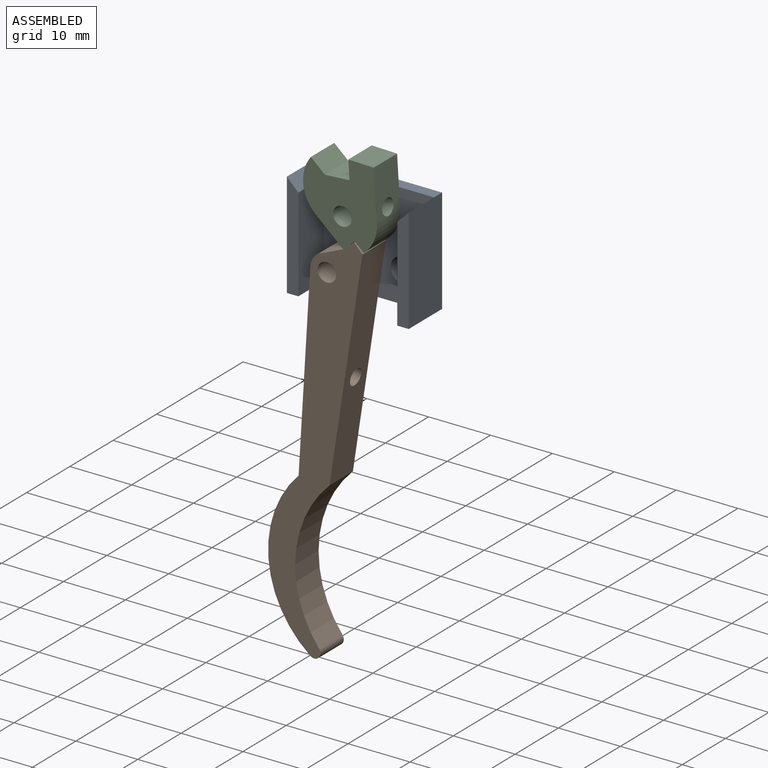
[diagram: assembled view]
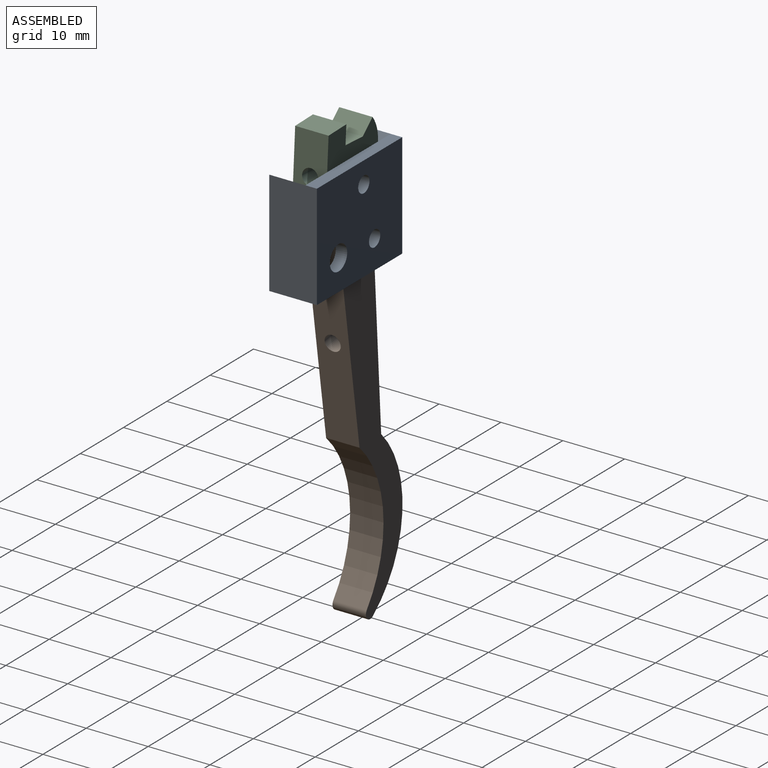
[diagram: assembled view, second angle]
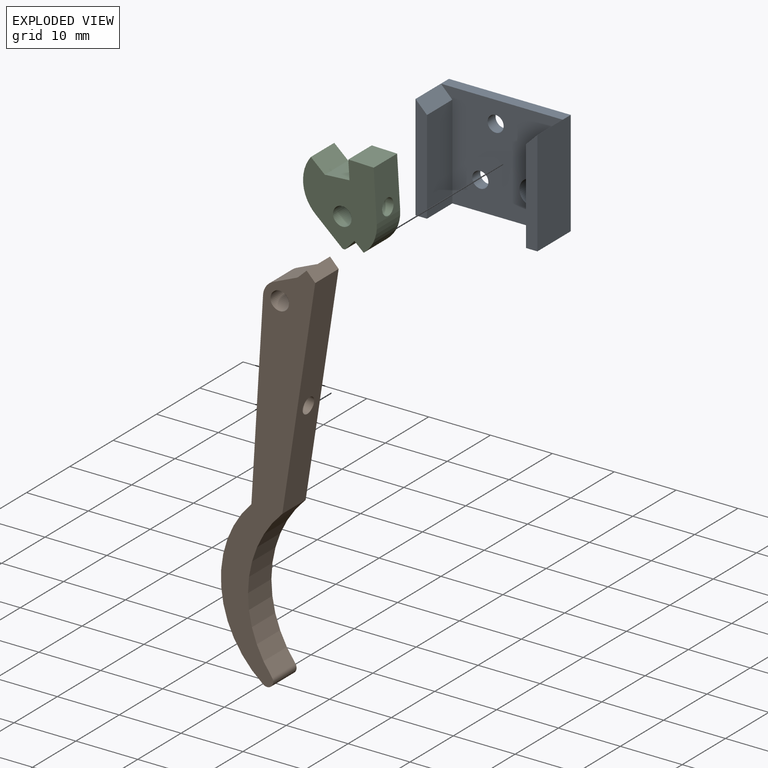
[diagram: exploded view]
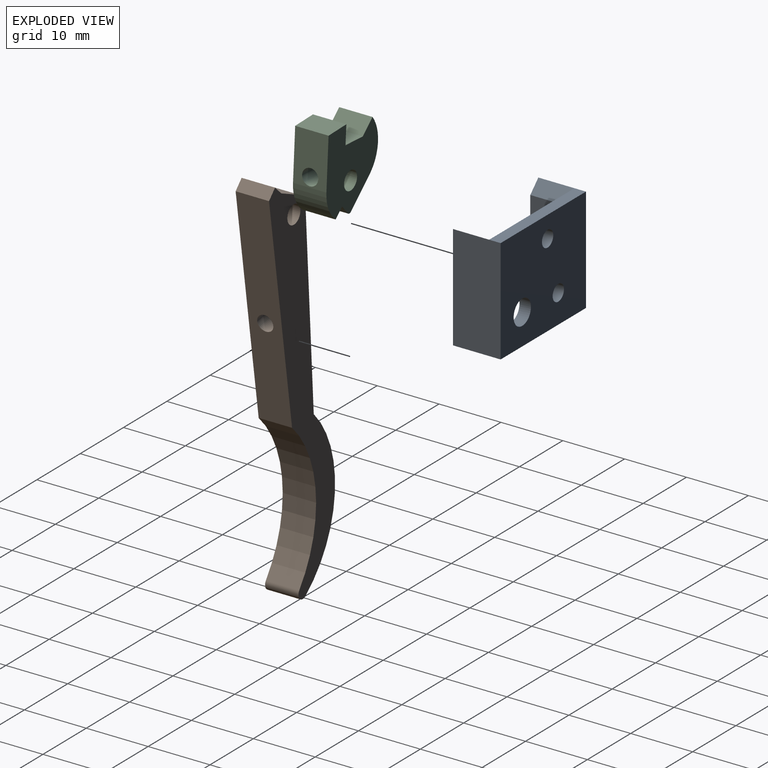
[diagram: exploded view, second angle]
ASSEMBLY  parts=3 mates=2
PART A: 15 faces, bbox 19.7x7.7x17 mm
  f0: plane 15.15x5.85mm, normal (1,0,0), area 88.6mm2, adj f3,f6,f9,f13
  f1: plane 15.15x5.85mm, normal (-1,0,0), area 88.6mm2, adj f2,f6,f9,f14
  f2: plane 5.85x1.85mm, normal (-0.71,0,0.71), area 15.3mm2, adj f1,f4,f6,f14
  f3: plane 5.85x1.85mm, normal (0.71,0,0.71), area 15.3mm2, adj f0,f6,f7,f13
  f4: plane 17x7.7mm, normal (1,0,0), area 130.9mm2, adj f2,f5,f8,f9,f14
  f5: plane 19.7x17mm, normal (0,1,0), area 311.7mm2, adj f4,f7,f8,f9,f10,f11,f12
  f6: plane 19.7x17mm, normal (0,-1,0), area 252.2mm2, adj f0,f1,f2,f3,f8,f9,f10,f11
  f7: plane 17x7.7mm, normal (-1,0,0), area 130.9mm2, adj f3,f5,f8,f9,f13
  f8: plane 19.7x1.85mm, normal (0,0,1), area 36.4mm2, adj f4,f5,f6,f7
  f9: plane 19.7x7.7mm, normal (0,0,-1), area 58.1mm2, adj f0,f1,f4,f5,f6,f7,f13,f14
  f10: cylinder r=2mm len=4mm, axis (0,-1,0), area 23.2mm2, adj f5,f6
  f11: cylinder r=1.3mm len=2.6mm, axis (0,-1,0), area 15.1mm2, adj f5,f6
  f12: cylinder r=1.3mm len=2.6mm, axis (0,-1,0), area 15.1mm2, adj f5,f6
  f13: plane 17x1.85mm, normal (0,-1,0), area 29.7mm2, adj f0,f3,f7,f9
  f14: plane 17x1.85mm, normal (0,-1,0), area 29.7mm2, adj f1,f2,f4,f9
PART B: 14 faces, bbox 14.4x5.4x62.7 mm
  f0: plane 5.4x1.29mm, normal (-0.71,0,0.71), area 9.8mm2, adj f8,f10,f11,f12
  f1: plane 5.4x3.78mm, normal (-0.41,0,0.91), area 22.4mm2, adj f2,f10,f11,f12
  f2: cylinder r=2.7mm len=5.4mm, axis (0,1,0), area 16.1mm2, adj f1,f3,f10,f11
  f3: plane 31.11x5.4mm, normal (-1,0,0.04), area 162.8mm2, adj f2,f4,f10,f11,f13
  f4: cylinder r=17.27mm len=25.81mm, axis (0,1,0), area 158.3mm2, adj f3,f5,f10,f11
  f5: cylinder r=1mm len=5.4mm, axis (0,1,0), area 15.6mm2, adj f4,f6,f10,f11
  f6: cylinder r=18.27mm len=24.37mm, axis (0,1,0), area 144.3mm2, adj f5,f7,f10,f11
  f7: plane 35.24x5.4mm, normal (0.99,0,-0.13), area 186.7mm2, adj f6,f8,f10,f11,f13
  f8: plane 5.4x1.41mm, normal (0.71,0,0.71), area 10.8mm2, adj f0,f7,f10,f11
  f9: cylinder r=1.5mm len=5.4mm, axis (0,1,0), area 50.9mm2, adj f10,f11
  f10: plane 62.66x14.36mm, normal (0,-1,0), area 328.8mm2, adj f0,f1,f2,f3,f4,f5,f6,f7
  f11: plane 62.66x14.36mm, normal (0,1,0), area 328.8mm2, adj f0,f1,f2,f3,f4,f5,f6,f7
  f12: cylinder r=1mm len=5.4mm, axis (0,-1,0), area 1.9mm2, adj f0,f1,f10,f11
  f13: cylinder r=1.3mm len=6.82mm, axis (0.99,0,-0.13), area 52.4mm2, adj f3,f7
PART C: 16 faces, bbox 11.7x5.4x13.2 mm
  f0: plane 5.4x3mm, normal (-1,0,0), area 16.2mm2, adj f1,f8,f10,f11
  f1: plane 5.4x4mm, normal (0,0,1), area 21.6mm2, adj f0,f2,f10,f11
  f2: plane 5.4x2.12mm, normal (0.71,0,0.71), area 16.2mm2, adj f1,f10,f11,f12
  f3: plane 5.4x4.01mm, normal (-0.71,0,-0.71), area 30.6mm2, adj f10,f11,f12,f15
  f4: plane 5.4x1.41mm, normal (0.71,0,-0.71), area 10.8mm2, adj f5,f10,f11,f15
  f5: plane 5.4x1.41mm, normal (-0.71,0,-0.71), area 10.8mm2, adj f4,f6,f10,f11
  f6: cylinder r=5.59mm len=5.4mm, axis (0,1,0), area 29.1mm2, adj f5,f7,f10,f11
  f7: plane 8.14x5.4mm, normal (1,0,0), area 38.7mm2, adj f6,f8,f10,f11,f13
  f8: plane 5.4x4.09mm, normal (0.09,0,1), area 22.2mm2, adj f0,f7,f10,f11
  f9: cylinder r=1.5mm len=5.4mm, axis (0,1,0), area 41.3mm2, adj f10,f11,f13
  f10: plane 13.24x11.71mm, normal (0,-1,0), area 103.6mm2, adj f0,f1,f2,f3,f4,f5,f6,f7
  f11: plane 13.24x11.71mm, normal (0,1,0), area 103.6mm2, adj f0,f1,f2,f3,f4,f5,f6,f7
  f12: cylinder r=6mm len=8.21mm, axis (0,1,0), area 48.8mm2, adj f2,f3,f10,f11
  f13: cylinder r=1.3mm len=10mm, axis (1,0,0), area 71.5mm2, adj f7,f9,f14
  f14: plane 2.6x2.6mm, normal (1,0,0), area 5.3mm2, adj f13
  f15: cylinder r=0.5mm len=5.4mm, axis (0,-1,0), area 4.2mm2, adj f3,f4,f10,f11
PLACE A t=(8,-0.07,0)mm
PLACE B rot(axis=(0,1,0),1.1deg) t=(4.53,-0.08,4.66)mm
PLACE C rot(axis=(0,-1,0),3.5deg) t=(7,-0.07,13.5)mm
MATE revolute A.f11 <-> B.f2  axis (0,-1,0) through (4.53,2.93,4.66)mm
MATE revolute C.f9 <-> A.f12  axis (0,1,0) through (7,2.63,13.5)mm
